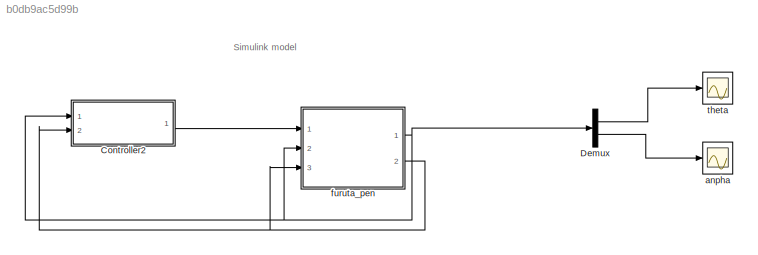
MODEL slx_b0db9ac5d99b
KIND model
CONFIG AbsTol = auto
CONFIG EnableMultiTasking = off
CONFIG FixedStep = auto
CONFIG MaxStep = auto
CONFIG MinStep = auto
CONFIG RelTol = 1e-3
CONFIG SampleTimeConstraint = Unconstrained
CONFIG Solver = ode45
CONFIG SolverName = ode45
CONFIG StartTime = 0.0
CONFIG StopTime = 10.0
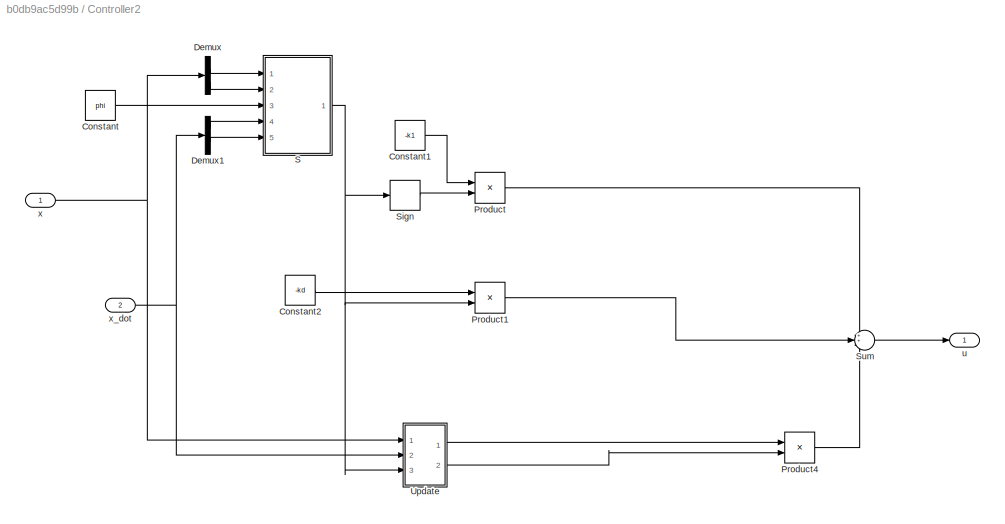
BLOCK [SubSystem] Controller2
  Ports = [2, 1]
  RequestExecContextInheritance = off
  Variant = off
BLOCK [Constant] Controller2/Constant
  Value = phi
BLOCK [Constant] Controller2/Constant1
  Value = -k1
BLOCK [Constant] Controller2/Constant2
  Value = -kd
BLOCK [Demux] Controller2/Demux
  DisplayOption = bar
  Outputs = 2
  Ports = [1, 2]
BLOCK [Demux] Controller2/Demux1
  DisplayOption = bar
  Outputs = 2
  Ports = [1, 2]
BLOCK [Product] Controller2/Product
  InputSameDT = off
  Multiplication = Matrix(*)
  OutDataTypeStr = Inherit: Inherit via internal rule
  Ports = [2, 1]
  RndMeth = Floor
  SaturateOnIntegerOverflow = off
BLOCK [Product] Controller2/Product1
  InputSameDT = off
  Multiplication = Matrix(*)
  OutDataTypeStr = Inherit: Inherit via internal rule
  Ports = [2, 1]
  RndMeth = Floor
  SaturateOnIntegerOverflow = off
BLOCK [Product] Controller2/Product4
  InputSameDT = off
  Multiplication = Matrix(*)
  OutDataTypeStr = Inherit: Inherit via internal rule
  Ports = [2, 1]
  RndMeth = Floor
  SaturateOnIntegerOverflow = off
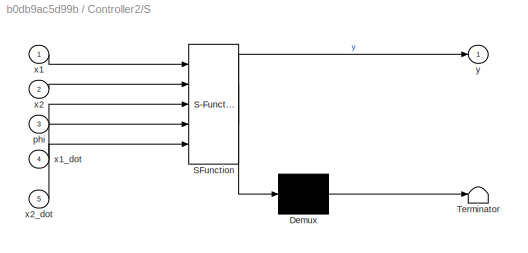
BLOCK [SubSystem] Controller2/S
  ErrorFcn = Stateflow.Translate.translate
  PermitHierarchicalResolution = ExplicitOnly
  Ports = [5, 1]
  RequestExecContextInheritance = off
  SFBlockType = MATLAB Function
  TreatAsAtomicUnit = on
  Variant = off
BLOCK [Demux] Controller2/S/ Demux 
  Outputs = 1
  Ports = [1, 1]
BLOCK [S-Function] Controller2/S/ SFunction 
  EnableBusSupport = on
  FunctionName = sf_sfun
  PortCounts = [5 2]
  Ports = [5, 2]
  SFcnIsStateOwnerBlock = off
  SFunctionDeploymentMode = off
  Tag = Stateflow S-Function furuta_pen_sim_2015 2
BLOCK [Terminator] Controller2/S/ Terminator 
BLOCK [Inport] Controller2/S/phi
  IconDisplay = Port number
  Port = 3
BLOCK [Inport] Controller2/S/x1
  IconDisplay = Port number
BLOCK [Inport] Controller2/S/x1_dot
  IconDisplay = Port number
  Port = 4
BLOCK [Inport] Controller2/S/x2
  IconDisplay = Port number
  Port = 2
BLOCK [Inport] Controller2/S/x2_dot
  IconDisplay = Port number
  Port = 5
BLOCK [Outport] Controller2/S/y
  IconDisplay = Port number
BLOCK [Signum] Controller2/Sign
BLOCK [Sum] Controller2/Sum
  IconShape = round
  InputSameDT = off
  Inputs = 3
  OutDataTypeStr = Inherit: Inherit via internal rule
  Ports = [3, 1]
  SaturateOnIntegerOverflow = off
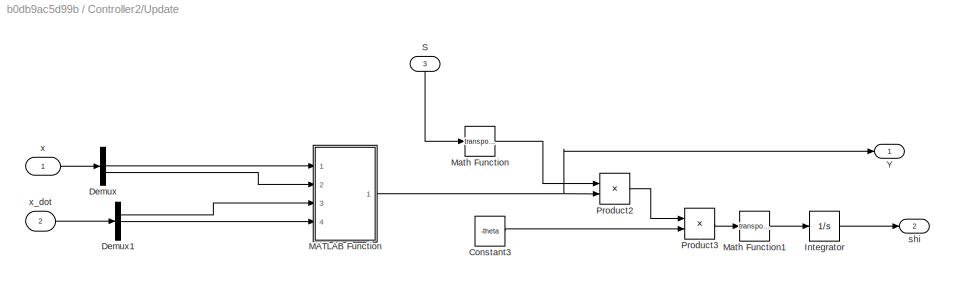
BLOCK [SubSystem] Controller2/Update
  Ports = [3, 2]
  RequestExecContextInheritance = off
  Variant = off
BLOCK [Constant] Controller2/Update/Constant3
  Value = -theta
BLOCK [Demux] Controller2/Update/Demux
  DisplayOption = bar
  Outputs = 2
  Ports = [1, 2]
BLOCK [Demux] Controller2/Update/Demux1
  DisplayOption = bar
  Outputs = 2
  Ports = [1, 2]
BLOCK [Integrator] Controller2/Update/Integrator
  InitialCondition = [0;0;0]
  Ports = [1, 1]
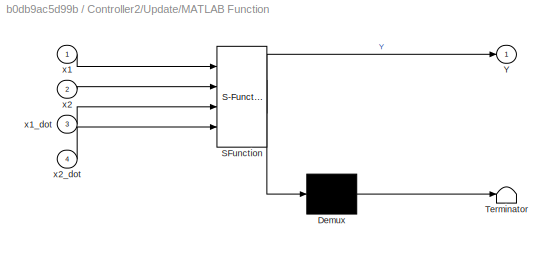
BLOCK [SubSystem] Controller2/Update/MATLAB Function
  ErrorFcn = Stateflow.Translate.translate
  PermitHierarchicalResolution = ExplicitOnly
  Ports = [4, 1]
  RequestExecContextInheritance = off
  SFBlockType = MATLAB Function
  TreatAsAtomicUnit = on
  Variant = off
BLOCK [Demux] Controller2/Update/MATLAB Function/ Demux 
  Outputs = 1
  Ports = [1, 1]
BLOCK [S-Function] Controller2/Update/MATLAB Function/ SFunction 
  EnableBusSupport = on
  FunctionName = sf_sfun
  PortCounts = [4 2]
  Ports = [4, 2]
  SFcnIsStateOwnerBlock = off
  SFunctionDeploymentMode = off
  Tag = Stateflow S-Function furuta_pen_sim_2015 1
BLOCK [Terminator] Controller2/Update/MATLAB Function/ Terminator 
BLOCK [Outport] Controller2/Update/MATLAB Function/Y
  IconDisplay = Port number
BLOCK [Inport] Controller2/Update/MATLAB Function/x1
  IconDisplay = Port number
BLOCK [Inport] Controller2/Update/MATLAB Function/x1_dot
  IconDisplay = Port number
  Port = 3
BLOCK [Inport] Controller2/Update/MATLAB Function/x2
  IconDisplay = Port number
  Port = 2
BLOCK [Inport] Controller2/Update/MATLAB Function/x2_dot
  IconDisplay = Port number
  Port = 4
BLOCK [Math] Controller2/Update/Math Function
  Operator = transpose
  Ports = [1, 1]
BLOCK [Math] Controller2/Update/Math Function1
  Operator = transpose
  Ports = [1, 1]
BLOCK [Product] Controller2/Update/Product2
  InputSameDT = off
  Multiplication = Matrix(*)
  OutDataTypeStr = Inherit: Inherit via internal rule
  Ports = [2, 1]
  RndMeth = Floor
  SaturateOnIntegerOverflow = off
BLOCK [Product] Controller2/Update/Product3
  InputSameDT = off
  OutDataTypeStr = Inherit: Inherit via internal rule
  Ports = [2, 1]
  RndMeth = Floor
  SaturateOnIntegerOverflow = off
BLOCK [Inport] Controller2/Update/S
  IconDisplay = Port number
  Port = 3
BLOCK [Outport] Controller2/Update/Y
  IconDisplay = Port number
BLOCK [Outport] Controller2/Update/shi
  IconDisplay = Port number
  Port = 2
BLOCK [Inport] Controller2/Update/x
  IconDisplay = Port number
BLOCK [Inport] Controller2/Update/x_dot
  IconDisplay = Port number
  Port = 2
BLOCK [Outport] Controller2/u
  IconDisplay = Port number
BLOCK [Inport] Controller2/x
  IconDisplay = Port number
BLOCK [Inport] Controller2/x_dot
  IconDisplay = Port number
  Port = 2
BLOCK [Demux] Demux
  DisplayOption = bar
  Outputs = 2
  Ports = [1, 2]
BLOCK [Scope] anpha
  NumInputPorts = 1
  Ports = [1]
  ScopeSpecificationString = C++SS(StrPVP('Location','[650, 201, 1210, 621]'),StrPVP('Open','off'),MxPVP('AxesTitles',53,'struct(''axes1'',''%<SignalLabel>'')'),MxPVP('ScopeGraphics',56,'struct(''FigureColor'',''[0.156862745098039 0.156862745098039 0.156862745098039]'',''AxesColor'',''[0 0 0]'',''AxesTickColor'',''[0.686274509803922 0.686274509803922 0.686274509803922]'',''LineColors'',''[1 1 0;1 0 1;0 1 1;1 0 0;0 1 0;0 0 1]'...<+351ch>
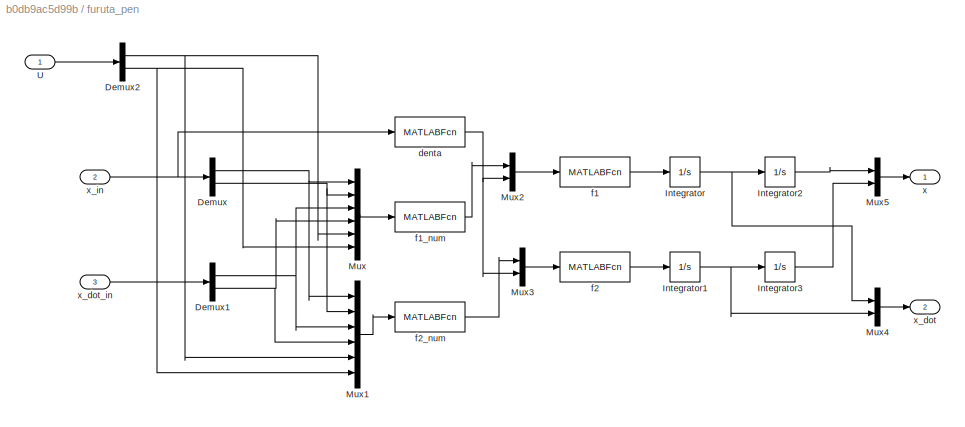
BLOCK [SubSystem] furuta_pen
  Ports = [3, 2]
  RequestExecContextInheritance = off
  Variant = off
BLOCK [Demux] furuta_pen/Demux
  DisplayOption = bar
  Outputs = 2
  Ports = [1, 2]
BLOCK [Demux] furuta_pen/Demux1
  DisplayOption = bar
  Outputs = 2
  Ports = [1, 2]
BLOCK [Demux] furuta_pen/Demux2
  DisplayOption = bar
  Outputs = 2
  Ports = [1, 2]
BLOCK [Integrator] furuta_pen/Integrator
  Ports = [1, 1]
BLOCK [Integrator] furuta_pen/Integrator1
  Ports = [1, 1]
BLOCK [Integrator] furuta_pen/Integrator2
  InitialCondition = theta_0*pi/180
  Ports = [1, 1]
BLOCK [Integrator] furuta_pen/Integrator3
  InitialCondition = anpha_0/180*pi
  Ports = [1, 1]
BLOCK [Mux] furuta_pen/Mux
  DisplayOption = bar
  Inputs = 6
  Ports = [6, 1]
BLOCK [Mux] furuta_pen/Mux1
  DisplayOption = bar
  Inputs = 6
  Ports = [6, 1]
BLOCK [Mux] furuta_pen/Mux2
  DisplayOption = bar
  Inputs = 2
  Ports = [2, 1]
BLOCK [Mux] furuta_pen/Mux3
  DisplayOption = bar
  Inputs = 2
  Ports = [2, 1]
BLOCK [Mux] furuta_pen/Mux4
  DisplayOption = bar
  Inputs = 2
  Ports = [2, 1]
BLOCK [Mux] furuta_pen/Mux5
  DisplayOption = bar
  Inputs = 2
  Ports = [2, 1]
BLOCK [Inport] furuta_pen/U
  IconDisplay = Port number
BLOCK [MATLABFcn] furuta_pen/denta
  MATLABFcn = J0*J1+m1^2*L1^4*sin(u(2))^2+m1^2*L0^2*L1^2+J0*m1*L1^2+J1*m1*L0^2+J1*m1*L1^2*sin(u(2))^2-m1^2*L0^2*L1^2*cos(u(2))^2
  Ports = [1, 1]
BLOCK [MATLABFcn] furuta_pen/f1
  MATLABFcn = u(1)/u(2)
  Ports = [1, 1]
BLOCK [MATLABFcn] furuta_pen/f1_num
  MATLABFcn = m1*L0*L1*cos(u(2))*(u(6)+0.5*m1*L1^2*sin(2*u(2))*u(3)^2+m1*g*L1*sin(u(2))-beta1*u(4))-(m1*L1^2+J1)*(m1*L1^2*sin(2*u(2))*u(3)*u(4)+m1*L0*L1*sin(u(2))*u(4)^2-u(5)+beta0*u(3))
  Ports = [1, 1]
BLOCK [MATLABFcn] furuta_pen/f2
  MATLABFcn = u(1)/u(2)
  Ports = [1, 1]
BLOCK [MATLABFcn] furuta_pen/f2_num
  MATLABFcn = (m1*L0^2+m1*L1^2*sin(u(2))^2+J0)*(0.5*m1*L1^2*sin(2*u(2))*u(3)^2+m1*g*L1*sin(u(2))-beta1*u(4))-m1*L0*L1*cos(u(2))*(m1*L1^2*sin(2*u(2))*u(3)*u(4)+m1*L0*L1*sin(u(2))*u(4)^2-u(5)+beta0*u(3))+(J0+m1*L0^2+m1*L1^2*sin(u(2))^2)*u(6)
  Ports = [1, 1]
BLOCK [Outport] furuta_pen/x
  IconDisplay = Port number
BLOCK [Outport] furuta_pen/x_dot
  IconDisplay = Port number
  Port = 2
BLOCK [Inport] furuta_pen/x_dot_in
  IconDisplay = Port number
  Port = 3
BLOCK [Inport] furuta_pen/x_in
  IconDisplay = Port number
  Port = 2
BLOCK [Scope] theta
  NumInputPorts = 1
  Ports = [1]
  ScopeSpecificationString = Simulink.scopes.TimeScopeBlockCfg('CurrentConfiguration', extmgr.ConfigurationSet(extmgr.Configuration('Core','General UI',true,'FigureColor',[0.156862745098039 0.156862745098039 0.156862745098039]),extmgr.Configuration('Core','Source UI',true),extmgr.Configuration('Sources','WiredSimulink',true,'DataLoggingSaveFormat','StructureWithTime','DataLoggingDecimation','1','DataLoggingDecimateData',true)...<+3134ch>
ANNOTATION (root): Simulink model
LINE Controller2/Constant1:1 -> Controller2/Product:1
LINE Controller2/Constant2:1 -> Controller2/Product1:1
LINE Controller2/Constant:1 -> Controller2/S:3
LINE Controller2/Demux1:1 -> Controller2/S:4
LINE Controller2/Demux1:2 -> Controller2/S:5
LINE Controller2/Demux:1 -> Controller2/S:1
LINE Controller2/Demux:2 -> Controller2/S:2
LINE Controller2/Product1:1 -> Controller2/Sum:2
LINE Controller2/Product4:1 -> Controller2/Sum:3
LINE Controller2/Product:1 -> Controller2/Sum:1
NET Controller2/S:1 -> Controller2/Product1:2, Controller2/Sign:1, Controller2/Update:3
LINE Controller2/Sign:1 -> Controller2/Product:2
LINE Controller2/Sum:1 -> Controller2/u:1
LINE Controller2/Update/Constant3:1 -> Controller2/Update/Product3:2
LINE Controller2/Update/Demux1:1 -> Controller2/Update/MATLAB Function:3
LINE Controller2/Update/Demux1:2 -> Controller2/Update/MATLAB Function:4
LINE Controller2/Update/Demux:1 -> Controller2/Update/MATLAB Function:1
LINE Controller2/Update/Demux:2 -> Controller2/Update/MATLAB Function:2
LINE Controller2/Update/Integrator:1 -> Controller2/Update/shi:1
NET Controller2/Update/MATLAB Function:1 -> Controller2/Update/Product2:2, Controller2/Update/Y:1
LINE Controller2/Update/Math Function1:1 -> Controller2/Update/Integrator:1
LINE Controller2/Update/Math Function:1 -> Controller2/Update/Product2:1
LINE Controller2/Update/Product2:1 -> Controller2/Update/Product3:1
LINE Controller2/Update/Product3:1 -> Controller2/Update/Math Function1:1
LINE Controller2/Update/S:1 -> Controller2/Update/Math Function:1
LINE Controller2/Update/x:1 -> Controller2/Update/Demux:1
LINE Controller2/Update/x_dot:1 -> Controller2/Update/Demux1:1
LINE Controller2/Update:1 -> Controller2/Product4:1
LINE Controller2/Update:2 -> Controller2/Product4:2
NET Controller2/x:1 -> Controller2/Demux:1, Controller2/Update:1
NET Controller2/x_dot:1 -> Controller2/Demux1:1, Controller2/Update:2
LINE Controller2:1 -> furuta_pen:1
LINE Demux:1 -> theta:1
LINE Demux:2 -> anpha:1
NET furuta_pen/Demux1:1 -> furuta_pen/Mux1:3, furuta_pen/Mux:3
NET furuta_pen/Demux1:2 -> furuta_pen/Mux1:4, furuta_pen/Mux:4
NET furuta_pen/Demux2:1 -> furuta_pen/Mux1:5, furuta_pen/Mux:5
NET furuta_pen/Demux2:2 -> furuta_pen/Mux1:6, furuta_pen/Mux:6
NET furuta_pen/Demux:1 -> furuta_pen/Mux1:1, furuta_pen/Mux:1
NET furuta_pen/Demux:2 -> furuta_pen/Mux1:2, furuta_pen/Mux:2
NET furuta_pen/Integrator1:1 -> furuta_pen/Integrator3:1, furuta_pen/Mux4:2
LINE furuta_pen/Integrator2:1 -> furuta_pen/Mux5:1
LINE furuta_pen/Integrator3:1 -> furuta_pen/Mux5:2
NET furuta_pen/Integrator:1 -> furuta_pen/Integrator2:1, furuta_pen/Mux4:1
LINE furuta_pen/Mux1:1 -> furuta_pen/f2_num:1
LINE furuta_pen/Mux2:1 -> furuta_pen/f1:1
LINE furuta_pen/Mux3:1 -> furuta_pen/f2:1
LINE furuta_pen/Mux4:1 -> furuta_pen/x_dot:1
LINE furuta_pen/Mux5:1 -> furuta_pen/x:1
LINE furuta_pen/Mux:1 -> furuta_pen/f1_num:1
LINE furuta_pen/U:1 -> furuta_pen/Demux2:1
NET furuta_pen/denta:1 -> furuta_pen/Mux2:2, furuta_pen/Mux3:2
LINE furuta_pen/f1:1 -> furuta_pen/Integrator:1
LINE furuta_pen/f1_num:1 -> furuta_pen/Mux2:1
LINE furuta_pen/f2:1 -> furuta_pen/Integrator1:1
LINE furuta_pen/f2_num:1 -> furuta_pen/Mux3:1
LINE furuta_pen/x_dot_in:1 -> furuta_pen/Demux1:1
NET furuta_pen/x_in:1 -> furuta_pen/Demux:1, furuta_pen/denta:1
NET furuta_pen:1 -> Controller2:1, Demux:1, furuta_pen:2
NET furuta_pen:2 -> Controller2:2, furuta_pen:3
note: NET lines group one-source signal fan-out (src -> all destinations, sorted); 1:1 wires keep LINE
CHART Controller2/Update/MATLAB Function states=1 transitions=1
  STATE_LABEL 'eML_blk_kernel()'
  STATE_LABEL 'SCRIPT:\nfunction Y = Y(x1,x2,x1_dot,x2_dot)\n%#codegen\n%x1 = x(1);\n%x2 = x(2);\n%x1_dot = x_dot(1);\n%x2_dot = x_dot(2);\nY = [x1,x1_dot,1;\n    x2,x2_dot,1];'
CHART Controller2/S states=1 transitions=1
  STATE_LABEL 'eML_blk_kernel()'
  STATE_LABEL 'SCRIPT:\nfunction y = S(x1,x2,phi,x1_dot,x2_dot)\n%#codegen\ny = -[x1_dot;x2_dot]-phi*[x1;x2];'
